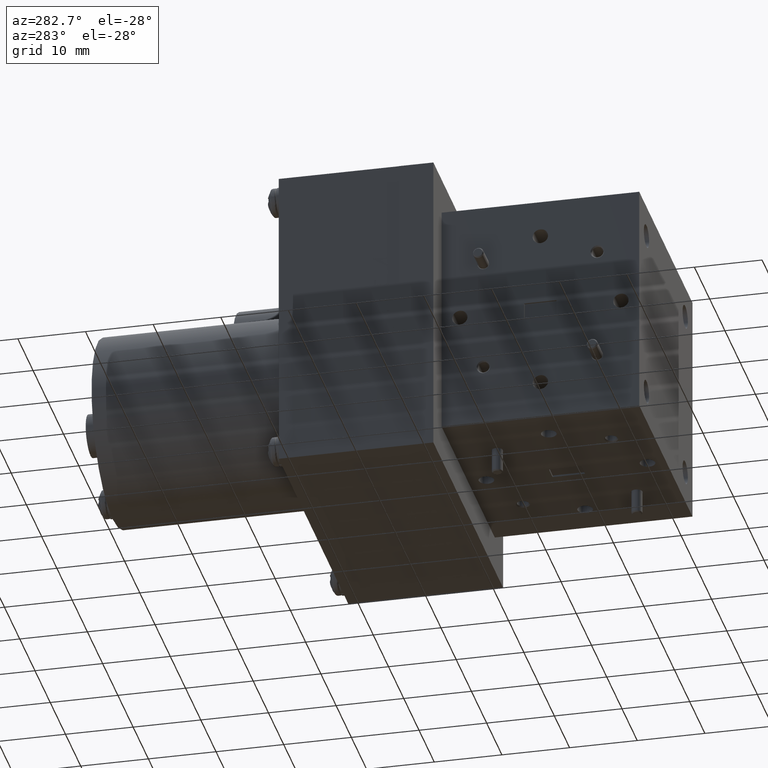
[diagram: clean part render]
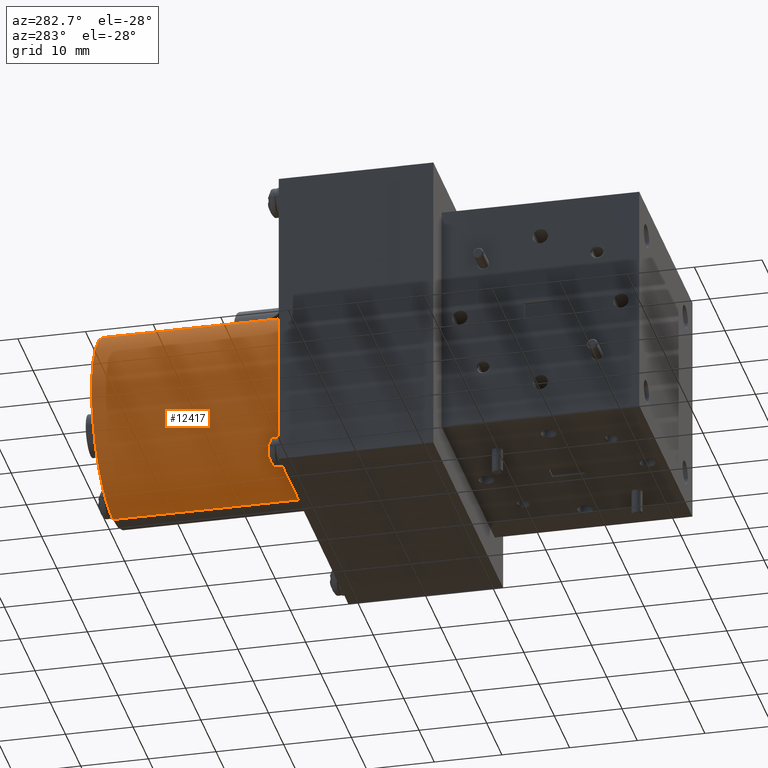
[diagram: same view with one face highlighted and labeled with its STEP entity id]
A machine part, auxiliary view. The second image highlights one B-rep face of the part: STEP entity #12417.
In plain terms, the highlighted cylindrical surface (partial cylindrical patch) has radius 13.97 mm, axis along (-0, -1, -0).
Its self-contained STEP definition (entity closure, byte-faithful):
#358 = CARTESIAN_POINT ( 'NONE',  ( -0.3000000000000000400, 3.149999999999999900, -0.2999999999999999900 ) ) ;
#1030 = CARTESIAN_POINT ( 'NONE',  ( -0.3000000000000000400, 2.049999999999999800, -0.8500000000000000900 ) ) ;
#1365 = CARTESIAN_POINT ( 'NONE',  ( -0.3000000000000000400, 2.049999999999999800, -0.2999999999999999900 ) ) ;
#3151 = AXIS2_PLACEMENT_3D ( 'NONE', #358, #13390, #26463 ) ;
#3205 = CARTESIAN_POINT ( 'NONE',  ( -0.2999999999999999900, 3.149999999999999900, 0.2500000000000001100 ) ) ;
#4046 = VECTOR ( 'NONE', #11510, 39.37007874015748100 ) ;
#5013 = CARTESIAN_POINT ( 'NONE',  ( -0.3000000000000000400, 3.149999999999999900, -0.8500000000000000900 ) ) ;
#6258 = DIRECTION ( 'NONE',  ( 0.0000000000000000000, 1.000000000000000000, 0.0000000000000000000 ) ) ;
#7339 = CYLINDRICAL_SURFACE ( 'NONE', #3151, 0.5500000000000001600 ) ;
#9840 = EDGE_LOOP ( 'NONE', ( #27241, #14895, #12928, #17455 ) ) ;
#11090 = EDGE_CURVE ( 'NONE', #31012, #24206, #32481, .T. ) ;
#11510 = DIRECTION ( 'NONE',  ( -0.0000000000000000000, -1.000000000000000000, -0.0000000000000000000 ) ) ;
#12145 = LINE ( 'NONE', #5013, #4046 ) ;
#12324 = DIRECTION ( 'NONE',  ( 0.0000000000000000000, 0.0000000000000000000, 1.000000000000000000 ) ) ;
#12417 = ADVANCED_FACE ( 'NONE', ( #30644 ), #7339, .T. ) ;
#12928 = ORIENTED_EDGE ( 'NONE', *, *, #40182, .T. ) ;
#13390 = DIRECTION ( 'NONE',  ( -0.0000000000000000000, -1.000000000000000000, -0.0000000000000000000 ) ) ;
#13743 = CARTESIAN_POINT ( 'NONE',  ( -0.2999999999999999900, 3.149999999999999900, 0.2500000000000001100 ) ) ;
#14895 = ORIENTED_EDGE ( 'NONE', *, *, #18493, .F. ) ;
#16873 = AXIS2_PLACEMENT_3D ( 'NONE', #1365, #27467, #27041 ) ;
#17455 = ORIENTED_EDGE ( 'NONE', *, *, #11090, .T. ) ;
#18493 = EDGE_CURVE ( 'NONE', #33893, #27076, #28630, .T. ) ;
#23703 = VECTOR ( 'NONE', #28841, 39.37007874015748100 ) ;
#24206 = VERTEX_POINT ( 'NONE', #25659 ) ;
#25659 = CARTESIAN_POINT ( 'NONE',  ( -0.2999999999999999900, 2.049999999999999800, 0.2500000000000001100 ) ) ;
#26463 = DIRECTION ( 'NONE',  ( 0.0000000000000000000, 0.0000000000000000000, -1.000000000000000000 ) ) ;
#27041 = DIRECTION ( 'NONE',  ( 0.0000000000000000000, 0.0000000000000000000, 1.000000000000000000 ) ) ;
#27076 = VERTEX_POINT ( 'NONE', #13743 ) ;
#27241 = ORIENTED_EDGE ( 'NONE', *, *, #28067, .F. ) ;
#27467 = DIRECTION ( 'NONE',  ( 0.0000000000000000000, 1.000000000000000000, 0.0000000000000000000 ) ) ;
#28067 = EDGE_CURVE ( 'NONE', #27076, #24206, #37942, .T. ) ;
#28630 = CIRCLE ( 'NONE', #34474, 0.5500000000000000400 ) ;
#28841 = DIRECTION ( 'NONE',  ( -0.0000000000000000000, -1.000000000000000000, -0.0000000000000000000 ) ) ;
#29065 = CARTESIAN_POINT ( 'NONE',  ( -0.3000000000000000400, 3.149999999999999900, -0.2999999999999999900 ) ) ;
#30644 = FACE_OUTER_BOUND ( 'NONE', #9840, .T. ) ;
#31012 = VERTEX_POINT ( 'NONE', #1030 ) ;
#32481 = CIRCLE ( 'NONE', #16873, 0.5500000000000000400 ) ;
#33893 = VERTEX_POINT ( 'NONE', #39692 ) ;
#34474 = AXIS2_PLACEMENT_3D ( 'NONE', #29065, #6258, #12324 ) ;
#37942 = LINE ( 'NONE', #3205, #23703 ) ;
#39692 = CARTESIAN_POINT ( 'NONE',  ( -0.3000000000000000400, 3.149999999999999900, -0.8500000000000000900 ) ) ;
#40182 = EDGE_CURVE ( 'NONE', #33893, #31012, #12145, .T. ) ;